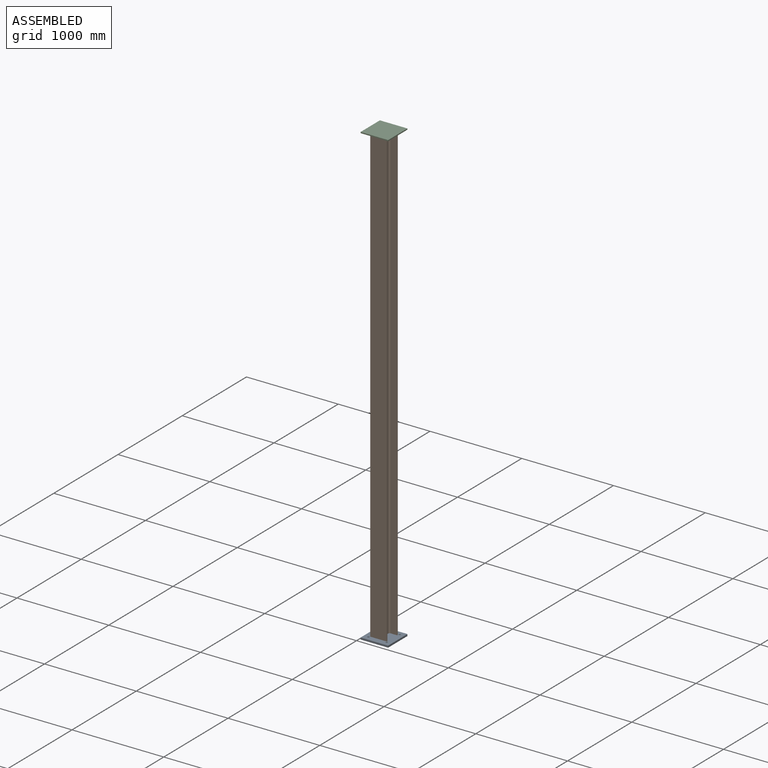
[diagram: assembled view]
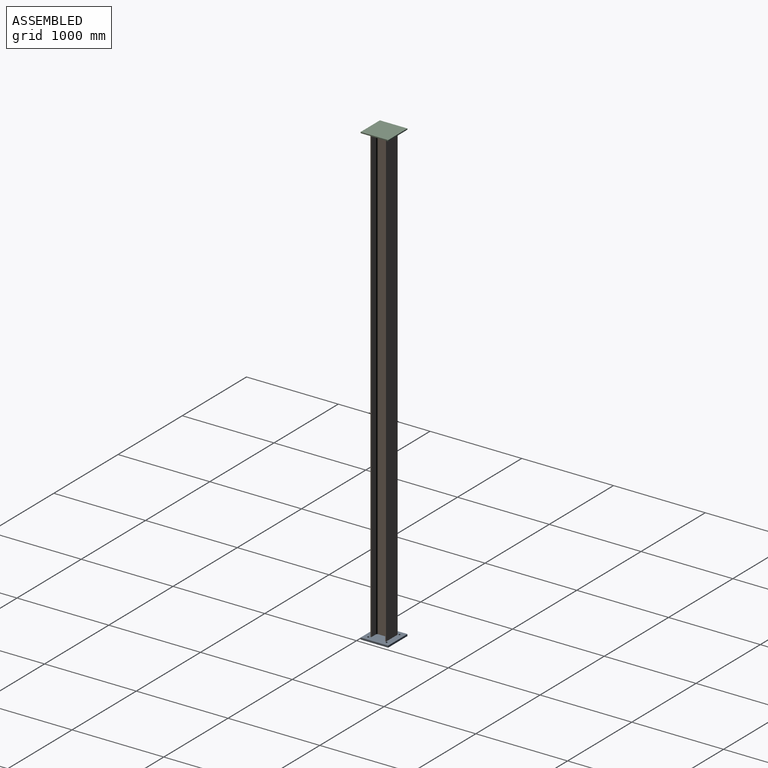
[diagram: assembled view, second angle]
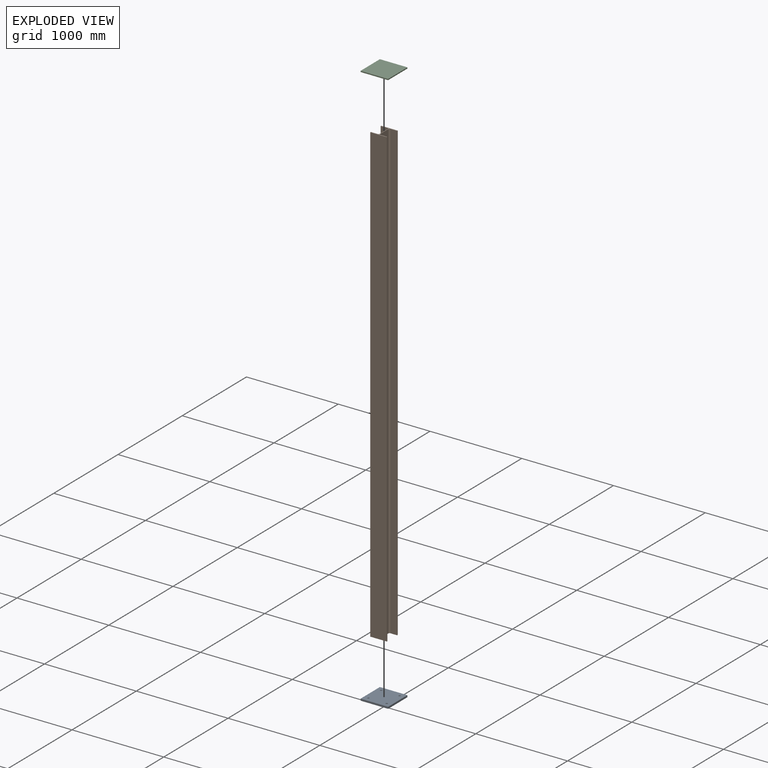
[diagram: exploded view]
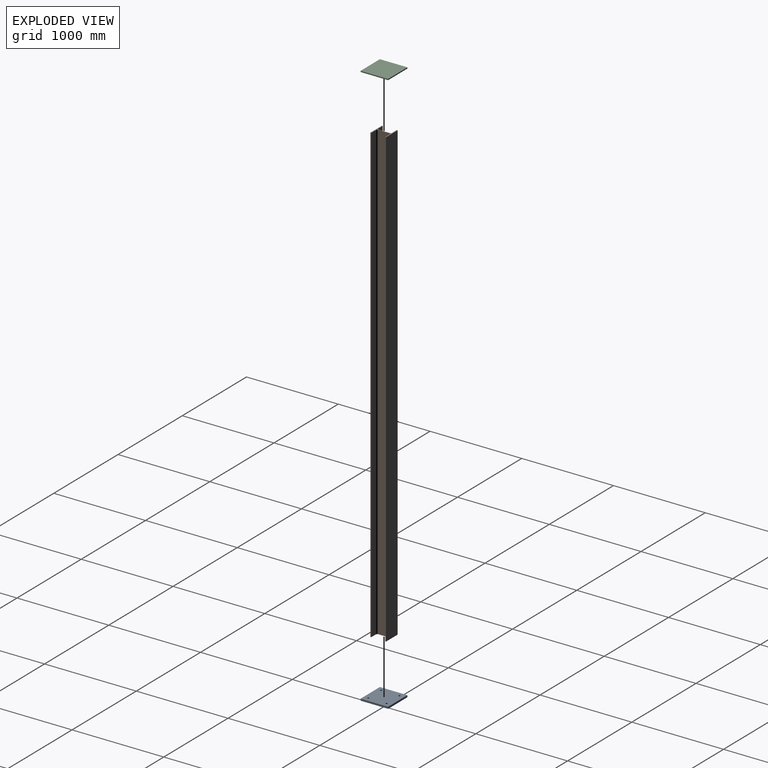
[diagram: exploded view, second angle]
ASSEMBLY  parts=3 mates=2
PART A: 10 faces, bbox 300x300x20 mm
  f0: plane 300x20mm, normal (1,0,0), area 6000mm2, adj f1,f6,f8,f9
  f1: plane 300x20mm, normal (0,1,0), area 6000mm2, adj f0,f2,f8,f9
  f2: plane 300x20mm, normal (-1,0,0), area 6000mm2, adj f1,f6,f8,f9
  f3: cylinder r=10mm len=20mm, axis (0,0,-1), area 1256.6mm2, adj f8,f9
  f4: cylinder r=10mm len=20mm, axis (0,0,-1), area 1256.6mm2, adj f8,f9
  f5: cylinder r=10mm len=20mm, axis (0,0,-1), area 1256.6mm2, adj f8,f9
  f6: plane 300x20mm, normal (0,-1,0), area 6000mm2, adj f0,f2,f8,f9
  f7: cylinder r=10mm len=20mm, axis (0,0,-1), area 1256.6mm2, adj f8,f9
  f8: plane 300x300mm, normal (0,0,1), area 88743.4mm2, adj f0,f1,f2,f3,f4,f5,f6,f7
  f9: plane 300x300mm, normal (0,0,-1), area 88743.4mm2, adj f0,f1,f2,f3,f4,f5,f6,f7
PART B: 18 faces, bbox 180x171x4968 mm
  f0: plane 4968x9.5mm, normal (-1,0,0), area 47196mm2, adj f1,f15,f16,f17
  f1: plane 4968x72mm, normal (0,1,0), area 357696mm2, adj f0,f2,f16,f17
  f2: cylinder r=15mm len=4968mm, axis (0,0,1), area 117055.7mm2, adj f1,f3,f16,f17
  f3: plane 4968x122mm, normal (-1,0,0), area 606096mm2, adj f2,f4,f16,f17
  f4: cylinder r=15mm len=4968mm, axis (0,0,1), area 117055.7mm2, adj f3,f5,f16,f17
  f5: plane 4968x72mm, normal (0,-1,0), area 357696mm2, adj f4,f6,f16,f17
  f6: plane 4968x9.5mm, normal (-1,0,0), area 47196mm2, adj f5,f7,f16,f17
  f7: plane 4968x180mm, normal (0,1,0), area 894240mm2, adj f6,f8,f16,f17
  f8: plane 4968x9.5mm, normal (1,0,0), area 47196mm2, adj f7,f9,f16,f17
  f9: plane 4968x72mm, normal (0,-1,0), area 357696mm2, adj f8,f10,f16,f17
  f10: cylinder r=15mm len=4968mm, axis (0,0,1), area 117055.7mm2, adj f9,f11,f16,f17
  f11: plane 4968x122mm, normal (1,0,0), area 606096mm2, adj f10,f12,f16,f17
  f12: cylinder r=15mm len=4968mm, axis (0,0,1), area 117055.7mm2, adj f11,f13,f16,f17
  f13: plane 4968x72mm, normal (0,1,0), area 357696mm2, adj f12,f14,f16,f17
  f14: plane 4968x9.5mm, normal (1,0,0), area 47196mm2, adj f13,f15,f16,f17
  f15: plane 4968x180mm, normal (0,-1,0), area 894240mm2, adj f0,f14,f16,f17
  f16: plane 180x171mm, normal (0,0,-1), area 4525.1mm2, adj f0,f1,f2,f3,f4,f5,f6,f7
  f17: plane 180x171mm, normal (0,0,1), area 4525.1mm2, adj f0,f1,f2,f3,f4,f5,f6,f7
PART C: 6 faces, bbox 300x300x12 mm
  f0: plane 300x12mm, normal (1,0,0), area 3600mm2, adj f1,f3,f4,f5
  f1: plane 300x12mm, normal (0,1,0), area 3600mm2, adj f0,f2,f4,f5
  f2: plane 300x12mm, normal (-1,0,0), area 3600mm2, adj f1,f3,f4,f5
  f3: plane 300x12mm, normal (0,-1,0), area 3600mm2, adj f0,f2,f4,f5
  f4: plane 300x300mm, normal (0,0,1), area 90000mm2, adj f0,f1,f2,f3
  f5: plane 300x300mm, normal (0,0,-1), area 90000mm2, adj f0,f1,f2,f3
PLACE A t=(0,0,-170)mm
PLACE B t=(0,0,2249)mm
PLACE C t=(0,0,4818)mm
MATE fastened B.f17 <-> C.f5  axis (0,0,1) through (0,0,4818)mm
MATE fastened A.f8 <-> B.f16  axis (0,0,1) through (0,0,-150)mm
